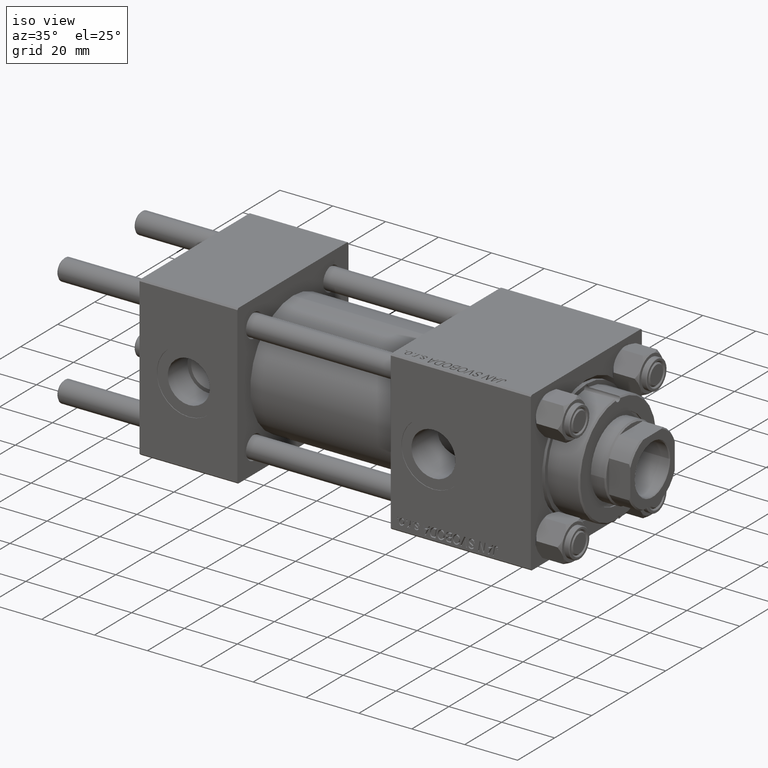
[diagram: clean part render]
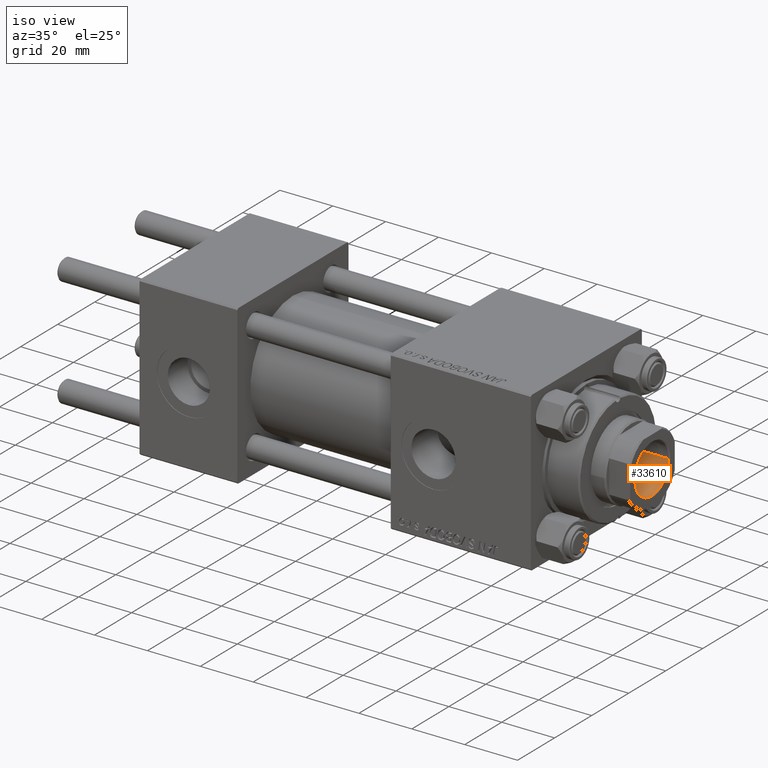
[diagram: same view with one face highlighted and labeled with its STEP entity id]
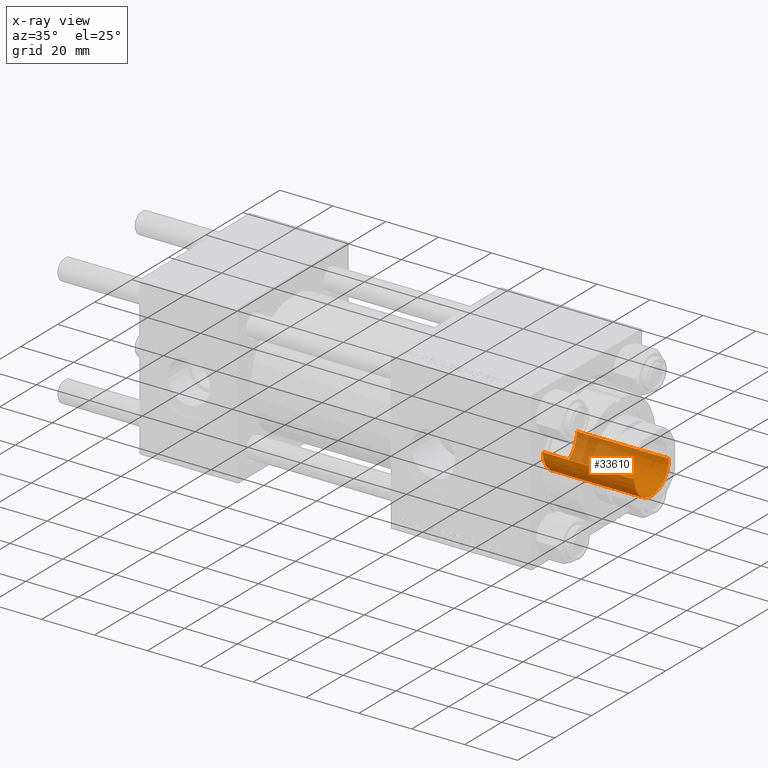
[diagram: x-ray of the same camera — body ghosted, the highlighted face saturated]
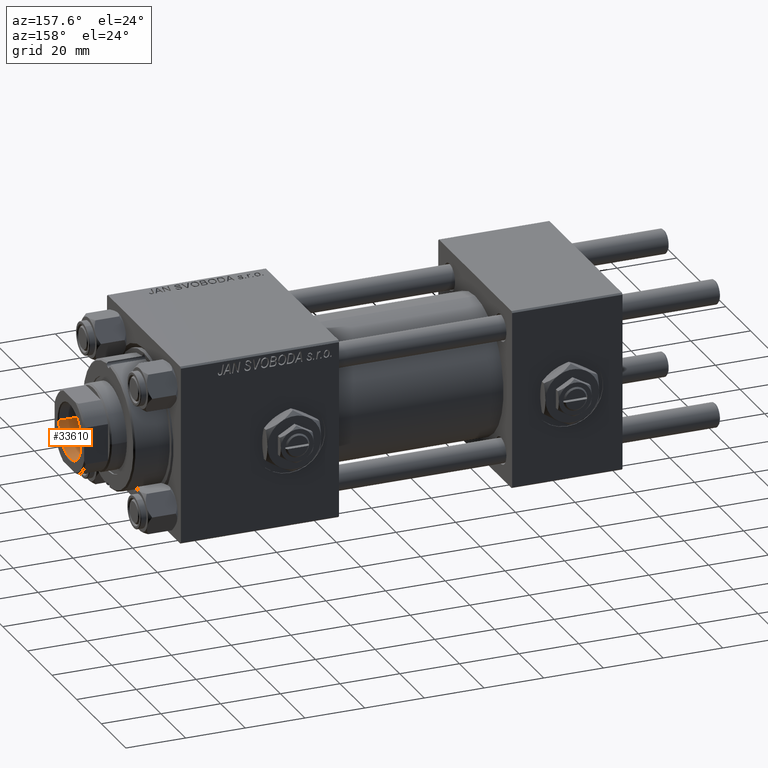
[diagram: same view with one face highlighted and labeled with its STEP entity id]
A machine part, iso view. The second image highlights one B-rep face of the part: STEP entity #33610.
The next image is the same camera in x-ray: the body ghosted, the highlighted face saturated — about 25% of this face is hidden behind the body in this view.
A second angle (auxiliary view) of the same face is appended — the face is thin or edge-on in the first view.
In plain terms, the highlighted cylindrical surface (edge-blend (fillet) strip) has radius 9.25 mm, axis along (1, 0, -0).
Its self-contained STEP definition (entity closure, byte-faithful):
#675 = EDGE_CURVE ( 'NONE', #26174, #43901, #8096, .T. ) ;
#872 = VECTOR ( 'NONE', #30604, 1000.000000000000000 ) ;
#889 = DIRECTION ( 'NONE',  ( 1.000000000000000000, 0.000000000000000000, 0.000000000000000000 ) ) ;
#1733 = DIRECTION ( 'NONE',  ( -0.000000000000000000, -0.000000000000000000, 1.000000000000000000 ) ) ;
#3072 = CARTESIAN_POINT ( 'NONE',  ( -9.249999999999992895, 1.132798289211300712E-15, 101.0000000000000000 ) ) ;
#3100 = DIRECTION ( 'NONE',  ( 1.000000000000000000, 0.000000000000000000, 0.000000000000000000 ) ) ;
#3169 = CARTESIAN_POINT ( 'NONE',  ( 9.249999999999994671, 0.000000000000000000, 135.7000000000000455 ) ) ;
#3413 = ORIENTED_EDGE ( 'NONE', *, *, #675, .T. ) ;
#3786 = DIRECTION ( 'NONE',  ( 1.000000000000000000, 0.000000000000000000, 0.000000000000000000 ) ) ;
#3875 = DIRECTION ( 'NONE',  ( -0.000000000000000000, -0.000000000000000000, 1.000000000000000000 ) ) ;
#4060 = DIRECTION ( 'NONE',  ( -0.000000000000000000, -0.000000000000000000, 1.000000000000000000 ) ) ;
#5418 = VERTEX_POINT ( 'NONE', #3072 ) ;
#6555 = EDGE_CURVE ( 'NONE', #43901, #33253, #29950, .T. ) ;
#8096 = LINE ( 'NONE', #16260, #35675 ) ;
#11437 = DIRECTION ( 'NONE',  ( 0.000000000000000000, 0.000000000000000000, 1.000000000000000000 ) ) ;
#11779 = EDGE_LOOP ( 'NONE', ( #28573, #41288, #3413, #14141 ) ) ;
#14141 = ORIENTED_EDGE ( 'NONE', *, *, #6555, .T. ) ;
#14445 = AXIS2_PLACEMENT_3D ( 'NONE', #51367, #3875, #3100 ) ;
#16260 = CARTESIAN_POINT ( 'NONE',  ( 9.249999999999994671, 0.000000000000000000, 136.0000000000000000 ) ) ;
#17898 = CIRCLE ( 'NONE', #36459, 9.249999999999992895 ) ;
#20653 = CARTESIAN_POINT ( 'NONE',  ( -9.249999999999994671, 1.132798289211300909E-15, 135.7000000000000455 ) ) ;
#26174 = VERTEX_POINT ( 'NONE', #51682 ) ;
#28573 = ORIENTED_EDGE ( 'NONE', *, *, #38678, .F. ) ;
#29950 = CIRCLE ( 'NONE', #43474, 9.249999999999994671 ) ;
#30604 = DIRECTION ( 'NONE',  ( -0.000000000000000000, -0.000000000000000000, 1.000000000000000000 ) ) ;
#33253 = VERTEX_POINT ( 'NONE', #20653 ) ;
#33610 = ADVANCED_FACE ( 'NONE', ( #48192 ), #51895, .F. ) ;
#34568 = CARTESIAN_POINT ( 'NONE',  ( -9.249999999999994671, 1.132798289211300909E-15, 136.0000000000000000 ) ) ;
#35675 = VECTOR ( 'NONE', #1733, 1000.000000000000000 ) ;
#36459 = AXIS2_PLACEMENT_3D ( 'NONE', #37036, #4060, #889 ) ;
#36820 = EDGE_CURVE ( 'NONE', #26174, #5418, #17898, .T. ) ;
#37036 = CARTESIAN_POINT ( 'NONE',  ( 0.000000000000000000, 0.000000000000000000, 101.0000000000000000 ) ) ;
#38536 = LINE ( 'NONE', #34568, #872 ) ;
#38678 = EDGE_CURVE ( 'NONE', #5418, #33253, #38536, .T. ) ;
#41288 = ORIENTED_EDGE ( 'NONE', *, *, #36820, .F. ) ;
#43474 = AXIS2_PLACEMENT_3D ( 'NONE', #47072, #11437, #3786 ) ;
#43901 = VERTEX_POINT ( 'NONE', #3169 ) ;
#47072 = CARTESIAN_POINT ( 'NONE',  ( 0.000000000000000000, 0.000000000000000000, 135.7000000000000455 ) ) ;
#48192 = FACE_OUTER_BOUND ( 'NONE', #11779, .T. ) ;
#51367 = CARTESIAN_POINT ( 'NONE',  ( 0.000000000000000000, 0.000000000000000000, 136.0000000000000000 ) ) ;
#51682 = CARTESIAN_POINT ( 'NONE',  ( 9.249999999999992895, 0.000000000000000000, 101.0000000000000000 ) ) ;
#51895 = CYLINDRICAL_SURFACE ( 'NONE', #14445, 9.249999999999994671 ) ;